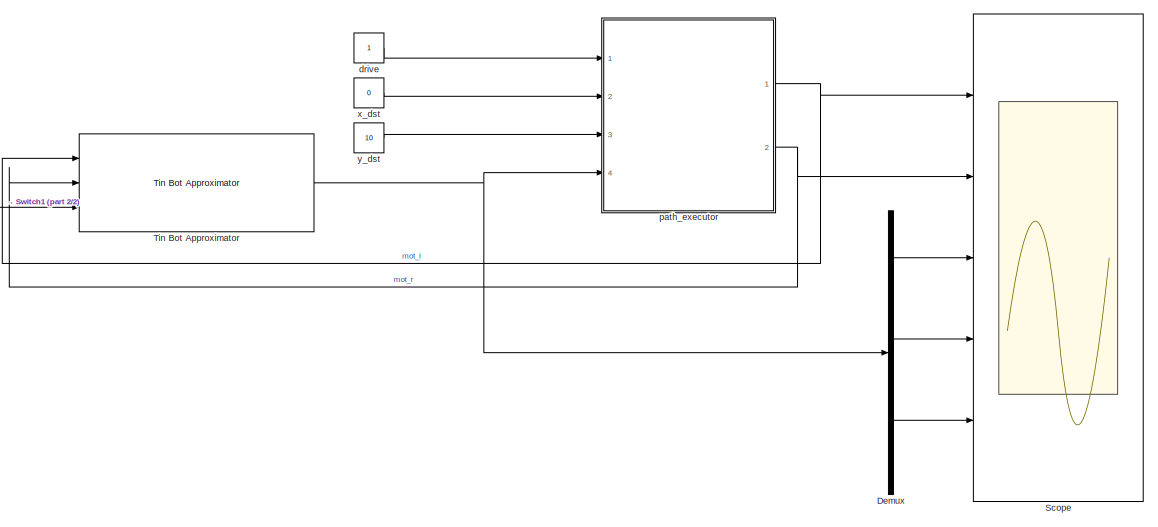
[diagram: root canvas - part 1/2, right side, full height]
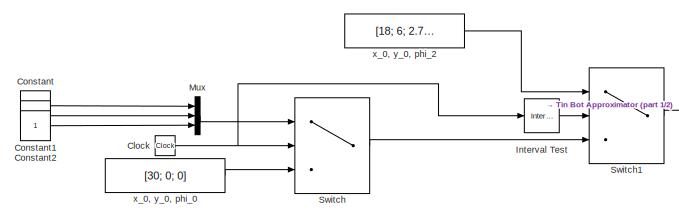
[diagram: root canvas - part 2/2, middle left region]
MODEL path_executor_test
KIND model
BLOCK [Clock] Clock
  SID = 24
BLOCK [Constant] Constant
  SID = 25
  Value = -1
BLOCK [Constant] Constant1
  SID = 26
BLOCK [Constant] Constant2
  SID = 28
BLOCK [Demux] Demux
  DisplayOption = bar
  Outputs = 3
  Ports = [1, 3]
  SID = 8
BLOCK [Reference] Interval Test  REF=simulink/Logic and Bit\nOperations/Interval Test
  IntervalClosedLeft = on
  IntervalClosedRight = on
  OutDataTypeStr = boolean
  Ports = [1, 1]
  SID = 30
  SourceBlock = simulink/Logic and Bit\nOperations/Interval Test
  SourceType = Interval Test
  lowlimit = 14.8
  uplimit = 15
BLOCK [Mux] Mux
  DisplayOption = bar
  Inputs = 3
  Ports = [3, 1]
  SID = 27
BLOCK [Scope] Scope
  NumInputPorts = 5
  Ports = [5]
  SID = 6
  ScopeSpecificationString = Simulink.scopes.TimeScopeBlockCfg('CurrentConfiguration', extmgr.ConfigurationSet(extmgr.Configuration('Core','General UI',true),extmgr.Configuration('Core','Source UI',true),extmgr.Configuration('Sources','WiredSimulink',true),extmgr.Configuration('Visuals','Time Domain',true,'SerializedDisplays',{struct('MinYLimReal','-1.75','MaxYLimReal','5.75','YLabelReal','','MinYLimMag','0.00000','MaxYLimMag...<+4848ch>
BLOCK [Switch] Switch
  Criteria = u2 > Threshold
  InputSameDT = off
  SID = 23
  SaturateOnIntegerOverflow = off
  Threshold = 0.01
BLOCK [Switch] Switch1
  InputSameDT = off
  SID = 32
  SaturateOnIntegerOverflow = off
  Threshold = 1
BLOCK [Reference] Tin Bot Approximator  REF=tinbot/Tin Bot Approximator  (lib defined in slx_3c5c153e9850, slx_5b2796442827, +1 more)
  FunctionWithSeparateData = off
  GeneratePreprocessorConditionals = off
  Ports = [3, 1]
  SID = 19
  ShowPortLabels = FromPortIcon
  SourceBlock = tinbot/Tin Bot Approximator
  SystemSampleTime = -1
BLOCK [Constant] drive
  SID = 2
BLOCK [ModelReference] path_executor
  ModelNameDialog = Path.slx
  ModelReferenceVersion = 1.40
  Ports = [4, 2]
  SID = 1
  Variant = off
BLOCK [Constant] x_0, y_0, phi_0
  SID = 5
  Value = [30; 0; 0]
BLOCK [Constant] x_0, y_0, phi_2
  SID = 33
  Value = [18; 6; 2.75]
BLOCK [Constant] x_dst
  SID = 3
  Value = 0
BLOCK [Constant] y_dst
  SID = 4
  Value = 10
NET Clock:1 -> Interval Test:1, Switch:2
LINE Constant1:1 -> Mux:2
LINE Constant2:1 -> Mux:3
LINE Constant:1 -> Mux:1
LINE Demux:1 -> Scope:3
LINE Demux:2 -> Scope:4
LINE Demux:3 -> Scope:5
LINE Interval Test:1 -> Switch1:2
LINE Mux:1 -> Switch:1
LINE Switch1:1 -> Tin Bot Approximator:3
LINE Switch:1 -> Switch1:3
NET Tin Bot Approximator:1 -> Demux:1, path_executor:4
LINE drive:1 -> path_executor:1
NET path_executor:1 -> Scope:1, Tin Bot Approximator:1
NET path_executor:2 -> Scope:2, Tin Bot Approximator:2
LINE x_0, y_0, phi_0:1 -> Switch:3
LINE x_0, y_0, phi_2:1 -> Switch1:1
LINE x_dst:1 -> path_executor:2
LINE y_dst:1 -> path_executor:3
note: NET lines group one-source signal fan-out (src -> all destinations, sorted); 1:1 wires keep LINE
